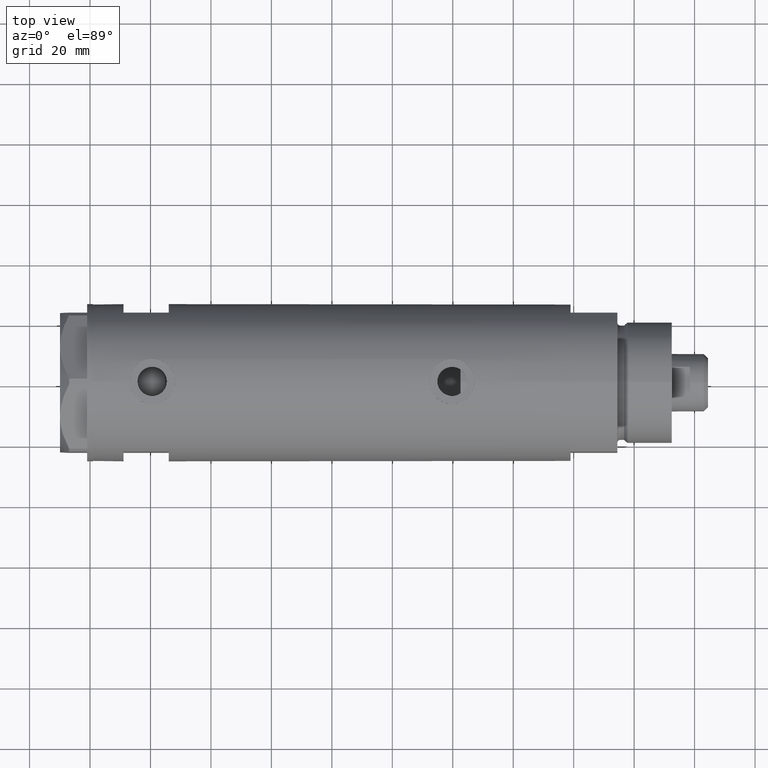
[diagram: clean part render]
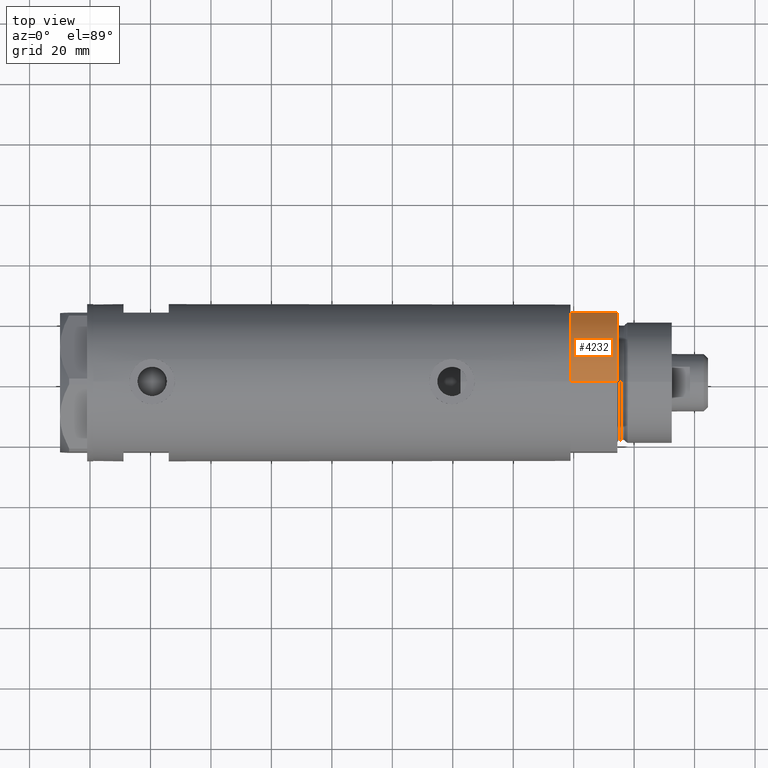
[diagram: same view with one face highlighted and labeled with its STEP entity id]
A machine part, top view. The second image highlights one B-rep face of the part: STEP entity #4232.
In plain terms, the highlighted cylindrical surface (partial cylindrical patch) has radius 26 mm, axis along (-1, -0, 0).
Its self-contained STEP definition (entity closure, byte-faithful):
#41 = CARTESIAN_POINT ( 'NONE',  ( 0.000000000000000000, 0.000000000000000000, 0.000000000000000000 ) ) ;
#118 = EDGE_CURVE ( 'NONE', #1460, #5559, #2525, .T. ) ;
#386 = ORIENTED_EDGE ( 'NONE', *, *, #1606, .F. ) ;
#705 = ORIENTED_EDGE ( 'NONE', *, *, #4139, .F. ) ;
#819 = DIRECTION ( 'NONE',  ( -0.000000000000000000, -0.000000000000000000, 1.000000000000000000 ) ) ;
#1080 = DIRECTION ( 'NONE',  ( -0.000000000000000000, -0.000000000000000000, -1.000000000000000000 ) ) ;
#1178 = DIRECTION ( 'NONE',  ( -1.000000000000000000, 0.000000000000000000, 0.000000000000000000 ) ) ;
#1246 = CARTESIAN_POINT ( 'NONE',  ( -26.00000000000000355, 0.000000000000000000, 15.50000000000000000 ) ) ;
#1460 = VERTEX_POINT ( 'NONE', #6287 ) ;
#1606 = EDGE_CURVE ( 'NONE', #1460, #5166, #4141, .T. ) ;
#1759 = CARTESIAN_POINT ( 'NONE',  ( -26.00000000000000355, 0.000000000000000000, 0.000000000000000000 ) ) ;
#2147 = LINE ( 'NONE', #3543, #2253 ) ;
#2172 = ORIENTED_EDGE ( 'NONE', *, *, #118, .T. ) ;
#2253 = VECTOR ( 'NONE', #1080, 1000.000000000000000 ) ;
#2363 = ORIENTED_EDGE ( 'NONE', *, *, #5688, .F. ) ;
#2364 = DIRECTION ( 'NONE',  ( 1.000000000000000000, 0.000000000000000000, 0.000000000000000000 ) ) ;
#2525 = CIRCLE ( 'NONE', #5799, 26.00000000000000355 ) ;
#2697 = FACE_OUTER_BOUND ( 'NONE', #4445, .T. ) ;
#3069 = CIRCLE ( 'NONE', #4099, 26.00000000000000355 ) ;
#3449 = DIRECTION ( 'NONE',  ( 1.000000000000000000, 0.000000000000000000, 0.000000000000000000 ) ) ;
#3543 = CARTESIAN_POINT ( 'NONE',  ( -26.00000000000000355, 0.000000000000000000, 15.50000000000000000 ) ) ;
#4099 = AXIS2_PLACEMENT_3D ( 'NONE', #5889, #5320, #3449 ) ;
#4139 = EDGE_CURVE ( 'NONE', #4175, #5559, #2147, .T. ) ;
#4141 = LINE ( 'NONE', #6137, #5613 ) ;
#4175 = VERTEX_POINT ( 'NONE', #1246 ) ;
#4232 = ADVANCED_FACE ( 'NONE', ( #2697 ), #4646, .T. ) ;
#4445 = EDGE_LOOP ( 'NONE', ( #705, #2363, #386, #2172 ) ) ;
#4646 = CYLINDRICAL_SURFACE ( 'NONE', #4708, 26.00000000000000355 ) ;
#4708 = AXIS2_PLACEMENT_3D ( 'NONE', #6114, #5635, #1178 ) ;
#4795 = DIRECTION ( 'NONE',  ( 0.000000000000000000, 0.000000000000000000, 1.000000000000000000 ) ) ;
#5166 = VERTEX_POINT ( 'NONE', #5646 ) ;
#5320 = DIRECTION ( 'NONE',  ( 0.000000000000000000, 0.000000000000000000, 1.000000000000000000 ) ) ;
#5559 = VERTEX_POINT ( 'NONE', #1759 ) ;
#5613 = VECTOR ( 'NONE', #819, 1000.000000000000000 ) ;
#5635 = DIRECTION ( 'NONE',  ( -0.000000000000000000, -0.000000000000000000, -1.000000000000000000 ) ) ;
#5646 = CARTESIAN_POINT ( 'NONE',  ( -12.12435565298214613, 23.00000000000000355, 15.50000000000000000 ) ) ;
#5688 = EDGE_CURVE ( 'NONE', #5166, #4175, #3069, .T. ) ;
#5799 = AXIS2_PLACEMENT_3D ( 'NONE', #41, #4795, #2364 ) ;
#5889 = CARTESIAN_POINT ( 'NONE',  ( 0.000000000000000000, 0.000000000000000000, 15.50000000000000000 ) ) ;
#6114 = CARTESIAN_POINT ( 'NONE',  ( 0.000000000000000000, 0.000000000000000000, 15.50000000000000000 ) ) ;
#6137 = CARTESIAN_POINT ( 'NONE',  ( -12.12435565298215145, 23.00000000000000355, 0.000000000000000000 ) ) ;
#6287 = CARTESIAN_POINT ( 'NONE',  ( -12.12435565298215145, 23.00000000000000355, 0.000000000000000000 ) ) ;